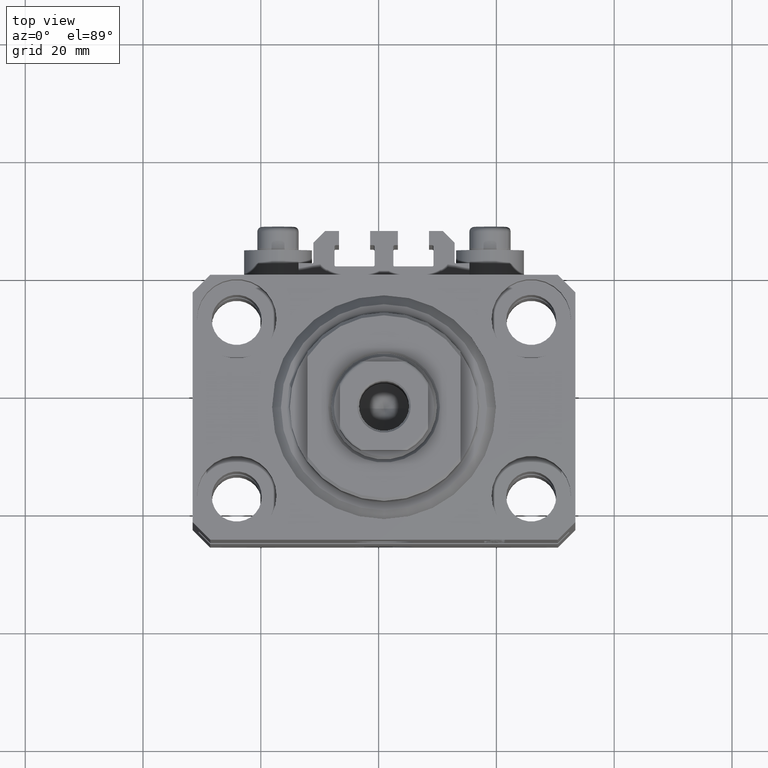
[diagram: clean part render]
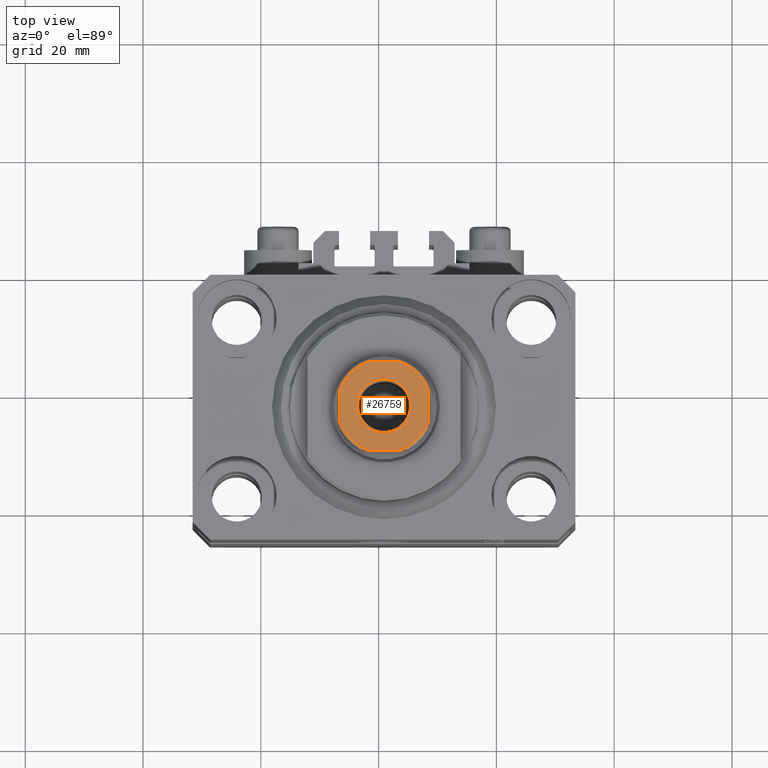
[diagram: same view with one face highlighted and labeled with its STEP entity id]
A machine part, top view. The second image highlights one B-rep face of the part: STEP entity #26759.
In plain terms, the highlighted planar face has unit normal (0, 0, 1).
Its self-contained STEP definition (entity closure, byte-faithful):
#409 = DIRECTION ( 'NONE',  ( -0.000000000000000000, 0.000000000000000000, 1.000000000000000000 ) ) ;
#875 = EDGE_CURVE ( 'NONE', #21249, #8384, #14336, .T. ) ;
#1244 = VECTOR ( 'NONE', #43047, 1000.000000000000000 ) ;
#2095 = VERTEX_POINT ( 'NONE', #28671 ) ;
#2342 = AXIS2_PLACEMENT_3D ( 'NONE', #43100, #43328, #10643 ) ;
#2928 = EDGE_CURVE ( 'NONE', #12084, #13822, #24329, .T. ) ;
#3046 = VERTEX_POINT ( 'NONE', #14280 ) ;
#3214 = CARTESIAN_POINT ( 'NONE',  ( 7.500000000000000888, 2.783882181415007206, 84.10000000000000853 ) ) ;
#4345 = DIRECTION ( 'NONE',  ( -0.000000000000000000, 0.000000000000000000, 1.000000000000000000 ) ) ;
#4443 = DIRECTION ( 'NONE',  ( 1.000000000000000000, 0.000000000000000000, 0.000000000000000000 ) ) ;
#5130 = CARTESIAN_POINT ( 'NONE',  ( 0.000000000000000000, 0.000000000000000000, 84.10000000000000853 ) ) ;
#6027 = EDGE_CURVE ( 'NONE', #42288, #3046, #39643, .T. ) ;
#6770 = CARTESIAN_POINT ( 'NONE',  ( 7.500000000000001776, 7.500000000000000000, 84.10000000000000853 ) ) ;
#7478 = CARTESIAN_POINT ( 'NONE',  ( -7.499999999999997335, -7.500000000000000888, 84.10000000000000853 ) ) ;
#7530 = VECTOR ( 'NONE', #26673, 1000.000000000000000 ) ;
#7712 = DIRECTION ( 'NONE',  ( 1.156482317317871478E-16, 1.000000000000000000, -0.000000000000000000 ) ) ;
#8384 = VERTEX_POINT ( 'NONE', #44070 ) ;
#8396 = AXIS2_PLACEMENT_3D ( 'NONE', #43701, #4345, #36555 ) ;
#8632 = AXIS2_PLACEMENT_3D ( 'NONE', #18795, #409, #41198 ) ;
#8742 = DIRECTION ( 'NONE',  ( 1.000000000000000000, 0.000000000000000000, 0.000000000000000000 ) ) ;
#9352 = DIRECTION ( 'NONE',  ( 0.000000000000000000, -0.000000000000000000, -1.000000000000000000 ) ) ;
#10425 = DIRECTION ( 'NONE',  ( 5.782411586589357392E-17, -1.000000000000000000, 0.000000000000000000 ) ) ;
#10643 = DIRECTION ( 'NONE',  ( 1.000000000000000000, 0.000000000000000000, 0.000000000000000000 ) ) ;
#10991 = ORIENTED_EDGE ( 'NONE', *, *, #15749, .T. ) ;
#11707 = EDGE_CURVE ( 'NONE', #21150, #27524, #37227, .T. ) ;
#12084 = VERTEX_POINT ( 'NONE', #3214 ) ;
#12791 = LINE ( 'NONE', #26904, #7530 ) ;
#13822 = VERTEX_POINT ( 'NONE', #22868 ) ;
#14280 = CARTESIAN_POINT ( 'NONE',  ( -7.499999999999998224, 2.783882181415015644, 84.10000000000000853 ) ) ;
#14336 = CIRCLE ( 'NONE', #44799, 4.549999999999984723 ) ;
#15749 = EDGE_CURVE ( 'NONE', #13822, #42288, #12791, .T. ) ;
#15883 = DIRECTION ( 'NONE',  ( -0.000000000000000000, 0.000000000000000000, 1.000000000000000000 ) ) ;
#16852 = ORIENTED_EDGE ( 'NONE', *, *, #6027, .T. ) ;
#17931 = VERTEX_POINT ( 'NONE', #21344 ) ;
#18325 = CARTESIAN_POINT ( 'NONE',  ( -2.783882181415010315, -7.500000000000000888, 84.10000000000000853 ) ) ;
#18795 = CARTESIAN_POINT ( 'NONE',  ( 0.000000000000000000, 0.000000000000000000, 84.10000000000000853 ) ) ;
#19258 = FACE_BOUND ( 'NONE', #42655, .T. ) ;
#20950 = EDGE_CURVE ( 'NONE', #17931, #2095, #21436, .T. ) ;
#21150 = VERTEX_POINT ( 'NONE', #45667 ) ;
#21249 = VERTEX_POINT ( 'NONE', #29207 ) ;
#21344 = CARTESIAN_POINT ( 'NONE',  ( 2.783882181415008539, -7.500000000000000888, 84.10000000000000853 ) ) ;
#21436 = CIRCLE ( 'NONE', #2342, 8.000000000000000000 ) ;
#22136 = FACE_OUTER_BOUND ( 'NONE', #31875, .T. ) ;
#22619 = CARTESIAN_POINT ( 'NONE',  ( 0.000000000000000000, 0.000000000000000000, 84.10000000000000853 ) ) ;
#22802 = AXIS2_PLACEMENT_3D ( 'NONE', #36239, #35759, #39340 ) ;
#22868 = CARTESIAN_POINT ( 'NONE',  ( 2.783882181415012980, 7.500000000000000000, 84.10000000000000853 ) ) ;
#24329 = CIRCLE ( 'NONE', #22802, 8.000000000000000000 ) ;
#24382 = EDGE_CURVE ( 'NONE', #2095, #12084, #36118, .T. ) ;
#25347 = EDGE_CURVE ( 'NONE', #8384, #21249, #35279, .T. ) ;
#26186 = ORIENTED_EDGE ( 'NONE', *, *, #2928, .T. ) ;
#26673 = DIRECTION ( 'NONE',  ( -1.000000000000000000, -5.782411586589357392E-17, -0.000000000000000000 ) ) ;
#26759 = ADVANCED_FACE ( 'NONE', ( #19258, #22136 ), #44520, .T. ) ;
#26904 = CARTESIAN_POINT ( 'NONE',  ( -7.499999999999998224, 7.499999999999999112, 84.10000000000000853 ) ) ;
#27524 = VERTEX_POINT ( 'NONE', #18325 ) ;
#28423 = ORIENTED_EDGE ( 'NONE', *, *, #25347, .T. ) ;
#28445 = CARTESIAN_POINT ( 'NONE',  ( 0.000000000000000000, 0.000000000000000000, 84.10000000000000853 ) ) ;
#28579 = LINE ( 'NONE', #43118, #36191 ) ;
#28671 = CARTESIAN_POINT ( 'NONE',  ( 7.500000000000000888, -2.783882181415009427, 84.10000000000000853 ) ) ;
#29207 = CARTESIAN_POINT ( 'NONE',  ( 4.549999999999984723, 0.000000000000000000, 84.10000000000000853 ) ) ;
#29396 = ORIENTED_EDGE ( 'NONE', *, *, #45460, .T. ) ;
#29651 = AXIS2_PLACEMENT_3D ( 'NONE', #5130, #15883, #4443 ) ;
#29808 = ORIENTED_EDGE ( 'NONE', *, *, #37514, .T. ) ;
#29898 = ORIENTED_EDGE ( 'NONE', *, *, #20950, .T. ) ;
#31875 = EDGE_LOOP ( 'NONE', ( #29396, #36528, #29808, #29898, #38468, #26186, #10991, #16852 ) ) ;
#32316 = LINE ( 'NONE', #7478, #1244 ) ;
#35279 = CIRCLE ( 'NONE', #45142, 4.549999999999984723 ) ;
#35759 = DIRECTION ( 'NONE',  ( -0.000000000000000000, 0.000000000000000000, 1.000000000000000000 ) ) ;
#36118 = LINE ( 'NONE', #6770, #39816 ) ;
#36191 = VECTOR ( 'NONE', #10425, 1000.000000000000000 ) ;
#36239 = CARTESIAN_POINT ( 'NONE',  ( 0.000000000000000000, 0.000000000000000000, 84.10000000000000853 ) ) ;
#36528 = ORIENTED_EDGE ( 'NONE', *, *, #11707, .T. ) ;
#36555 = DIRECTION ( 'NONE',  ( 1.000000000000000000, 0.000000000000000000, 0.000000000000000000 ) ) ;
#37227 = CIRCLE ( 'NONE', #29651, 8.000000000000000000 ) ;
#37514 = EDGE_CURVE ( 'NONE', #27524, #17931, #32316, .T. ) ;
#38192 = ORIENTED_EDGE ( 'NONE', *, *, #875, .T. ) ;
#38468 = ORIENTED_EDGE ( 'NONE', *, *, #24382, .T. ) ;
#38707 = DIRECTION ( 'NONE',  ( 1.000000000000000000, 0.000000000000000000, 0.000000000000000000 ) ) ;
#39340 = DIRECTION ( 'NONE',  ( 1.000000000000000000, 0.000000000000000000, 0.000000000000000000 ) ) ;
#39643 = CIRCLE ( 'NONE', #8396, 8.000000000000000000 ) ;
#39799 = CARTESIAN_POINT ( 'NONE',  ( -2.783882181415013868, 7.499999999999999112, 84.10000000000000853 ) ) ;
#39816 = VECTOR ( 'NONE', #7712, 1000.000000000000000 ) ;
#41198 = DIRECTION ( 'NONE',  ( 1.000000000000000000, 0.000000000000000000, 0.000000000000000000 ) ) ;
#41445 = DIRECTION ( 'NONE',  ( 0.000000000000000000, -0.000000000000000000, -1.000000000000000000 ) ) ;
#42288 = VERTEX_POINT ( 'NONE', #39799 ) ;
#42655 = EDGE_LOOP ( 'NONE', ( #38192, #28423 ) ) ;
#43047 = DIRECTION ( 'NONE',  ( 1.000000000000000000, 5.782411586589358625E-17, 0.000000000000000000 ) ) ;
#43100 = CARTESIAN_POINT ( 'NONE',  ( 0.000000000000000000, 0.000000000000000000, 84.10000000000000853 ) ) ;
#43118 = CARTESIAN_POINT ( 'NONE',  ( -7.499999999999998224, 7.499999999999999112, 84.10000000000000853 ) ) ;
#43328 = DIRECTION ( 'NONE',  ( -0.000000000000000000, 0.000000000000000000, 1.000000000000000000 ) ) ;
#43701 = CARTESIAN_POINT ( 'NONE',  ( 0.000000000000000000, 0.000000000000000000, 84.10000000000000853 ) ) ;
#44070 = CARTESIAN_POINT ( 'NONE',  ( -4.549999999999984723, 5.572142936120437605E-16, 84.10000000000000853 ) ) ;
#44520 = PLANE ( 'NONE',  #8632 ) ;
#44799 = AXIS2_PLACEMENT_3D ( 'NONE', #22619, #41445, #8742 ) ;
#45142 = AXIS2_PLACEMENT_3D ( 'NONE', #28445, #9352, #38707 ) ;
#45460 = EDGE_CURVE ( 'NONE', #3046, #21150, #28579, .T. ) ;
#45667 = CARTESIAN_POINT ( 'NONE',  ( -7.499999999999998224, -2.783882181415016088, 84.10000000000000853 ) ) ;